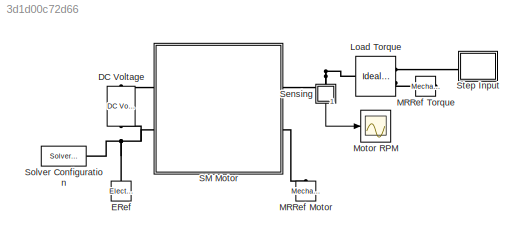
MODEL slx_3d1d00c72d66
KIND model
CONFIG AbsTol = auto
CONFIG EnableMultiTasking = off
CONFIG FixedStep = auto
CONFIG MaxStep = auto
CONFIG MinStep = auto
CONFIG RelTol = 1e-3
CONFIG SampleTimeConstraint = Unconstrained
CONFIG Solver = VariableStepAuto
CONFIG SolverName = VariableStepAuto
CONFIG StartTime = 0.0
CONFIG StopTime = 10
BLOCK [Reference] DC Voltage  REF=fl_lib/Electrical/Electrical Sources/DC Voltage Source
  Ports = [0, 0, 0, 0, 0, 1, 1]
  SourceBlock = fl_lib/Electrical/Electrical Sources/DC Voltage Source
  SourceProductBaseCode = SS
  SourceProductName = Simscape
  SourceType = DC Voltage Source
BLOCK [Reference] ERef  REF=fl_lib/Electrical/Electrical Elements/Electrical Reference
  Ports = [0, 0, 0, 0, 0, 1]
  SourceBlock = fl_lib/Electrical/Electrical Elements/Electrical Reference
  SourceProductBaseCode = SS
  SourceProductName = Simscape
  SourceType = Electrical Reference
BLOCK [Reference] Load Torque  REF=fl_lib/Mechanical/Mechanical Sources/Ideal Torque Source
  Ports = [0, 0, 0, 0, 0, 1, 2]
  SourceBlock = fl_lib/Mechanical/Mechanical Sources/Ideal Torque Source
  SourceProductBaseCode = SS
  SourceProductName = Simscape
  SourceType = Ideal Torque Source
BLOCK [Reference] MRRef Motor  REF=fl_lib/Mechanical/Rotational Elements/Mechanical
Rotational Reference
  Ports = [0, 0, 0, 0, 0, 1]
  SourceBlock = fl_lib/Mechanical/Rotational Elements/Mechanical\nRotational Reference
  SourceProductBaseCode = SS
  SourceProductName = Simscape
  SourceType = Mechanical\nRotational Reference
BLOCK [Reference] MRRef Torque  REF=fl_lib/Mechanical/Rotational Elements/Mechanical
Rotational Reference
  Ports = [0, 0, 0, 0, 0, 1]
  SourceBlock = fl_lib/Mechanical/Rotational Elements/Mechanical\nRotational Reference
  SourceProductBaseCode = SS
  SourceProductName = Simscape
  SourceType = Mechanical\nRotational Reference
BLOCK [Scope] Motor RPM
  Floating = off
  NumInputPorts = 1
  Ports = [1]
  ScopeSpecificationString = Simulink.scopes.TimeScopeBlockCfg('CurrentConfiguration', extmgr.ConfigurationSet(extmgr.Configuration('Core','General UI',true),extmgr.Configuration('Core','Source UI',true),extmgr.Configuration('Sources','WiredSimulink',true,'DataLoggingSaveFormat','StructureWithTime','DataLoggingLimitDataPoints',true,'DataLoggingDecimation','1'),extmgr.Configuration('Visuals','Time Domain',true,'SerializedDispl...<+1692ch>
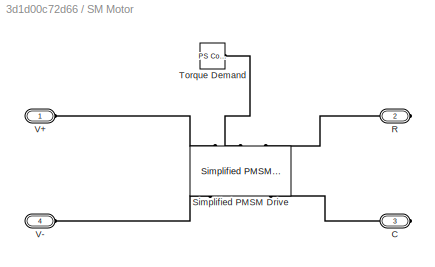
BLOCK [SubSystem] SM Motor
  Ports = [0, 0, 0, 0, 0, 2, 2]
  RequestExecContextInheritance = off
  Tag = PublishSubsystem
BLOCK [PMIOPort] SM Motor/C
  Port = 3
  Side = Right
BLOCK [PMIOPort] SM Motor/R
  Port = 2
  Side = Right
BLOCK [Reference] SM Motor/Simplified PMSM Drive  REF=ee_lib/Electromechanical/Permanent Magnet/Simplified PMSM
Drive
  Ports = [0, 0, 0, 0, 0, 3, 4]
  SourceBlock = ee_lib/Electromechanical/Permanent Magnet/Simplified PMSM\nDrive
  SourceProductBaseCode = PS
  SourceProductName = Simscape Electrical
  SourceType = Simplified PMSM\nDrive
BLOCK [Reference] SM Motor/Torque Demand  REF=fl_lib/Physical Signals/Sources/PS Constant
  Ports = [0, 0, 0, 0, 0, 0, 1]
  SourceBlock = fl_lib/Physical Signals/Sources/PS Constant
  SourceProductBaseCode = SS
  SourceProductName = Simscape
  SourceType = PS Constant
BLOCK [PMIOPort] SM Motor/V+
  Side = Left
BLOCK [PMIOPort] SM Motor/V-
  Port = 4
  Side = Left
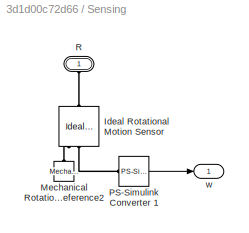
BLOCK [SubSystem] Sensing
  Ports = [0, 1, 0, 0, 0, 1]
  RequestExecContextInheritance = off
BLOCK [Reference] Sensing/Ideal Rotational Motion Sensor  REF=fl_lib/Mechanical/Mechanical Sensors/Ideal Rotational
Motion Sensor
  Ports = [0, 0, 0, 0, 0, 1, 3]
  SourceBlock = fl_lib/Mechanical/Mechanical Sensors/Ideal Rotational\nMotion Sensor
  SourceProductBaseCode = SS
  SourceProductName = Simscape
  SourceType = Ideal Rotational\nMotion Sensor
BLOCK [Reference] Sensing/Mechanical Rotational Reference2  REF=fl_lib/Mechanical/Rotational Elements/Mechanical
Rotational Reference
  Ports = [0, 0, 0, 0, 0, 1]
  SourceBlock = fl_lib/Mechanical/Rotational Elements/Mechanical\nRotational Reference
  SourceProductBaseCode = SS
  SourceProductName = Simscape
  SourceType = Mechanical\nRotational Reference
BLOCK [Reference] Sensing/PS-Simulink Converter 1  REF=nesl_utility/PS-Simulink
Converter
  Ports = [0, 1, 0, 0, 0, 1]
  SourceBlock = nesl_utility/PS-Simulink\nConverter
  SourceProductBaseCode = SS
  SourceProductName = Simscape
  SourceType = PS-Simulink\nConverter
BLOCK [PMIOPort] Sensing/R
  Side = Left
BLOCK [Outport] Sensing/w
  IconDisplay = Port number
  VectorParamsAs1DForOutWhenUnconnected = off
BLOCK [Reference] Solver Configuration  REF=nesl_utility/Solver
Configuration
  Ports = [0, 0, 0, 0, 0, 0, 1]
  SourceBlock = nesl_utility/Solver\nConfiguration
  SourceProductBaseCode = SS
  SourceProductName = Simscape
  SourceType = Solver\nConfiguration
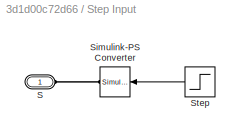
BLOCK [SubSystem] Step Input
  Ports = [0, 0, 0, 0, 0, 1]
  RequestExecContextInheritance = off
BLOCK [PMIOPort] Step Input/S
  Side = Left
BLOCK [Reference] Step Input/Simulink-PS Converter  REF=nesl_utility/Simulink-PS
Converter
  Ports = [1, 0, 0, 0, 0, 0, 1]
  SourceBlock = nesl_utility/Simulink-PS\nConverter
  SourceProductBaseCode = SS
  SourceProductName = Simscape
  SourceType = Simulink-PS\nConverter
BLOCK [Step] Step Input/Step
  SampleTime = 0
  Time = 5
LINE Sensing/PS-Simulink Converter 1:1 -> Sensing/w:1
LINE Sensing:1 -> Motor RPM:1
LINE Step Input/Step:1 -> Step Input/Simulink-PS Converter:1
PLINE DC Voltage:LConn1 -- SM Motor:LConn1
PNET net1: DC Voltage:RConn1 -- ERef:LConn1 -- SM Motor:LConn2 -- Solver Configuration:RConn1
PNET net2: Load Torque:LConn1 -- SM Motor:RConn1 -- Sensing:LConn1
PLINE Load Torque:RConn1 -- Step Input:LConn1
PLINE Load Torque:RConn2 -- MRRef Torque:LConn1
PLINE MRRef Motor:LConn1 -- SM Motor:RConn2
PLINE SM Motor/C:RConn1 -- SM Motor/Simplified PMSM Drive:RConn4
PLINE SM Motor/R:RConn1 -- SM Motor/Simplified PMSM Drive:LConn3
PLINE SM Motor/Simplified PMSM Drive:LConn1 -- SM Motor/V+:RConn1
PLINE SM Motor/Simplified PMSM Drive:LConn2 -- SM Motor/Torque Demand:RConn1
PLINE SM Motor/Simplified PMSM Drive:RConn1 -- SM Motor/V-:RConn1
PLINE Sensing/Ideal Rotational Motion Sensor:LConn1 -- Sensing/R:RConn1
PLINE Sensing/Ideal Rotational Motion Sensor:RConn1 -- Sensing/Mechanical Rotational Reference2:LConn1
PLINE Sensing/Ideal Rotational Motion Sensor:RConn2 -- Sensing/PS-Simulink Converter 1:LConn1
PLINE Step Input/S:RConn1 -- Step Input/Simulink-PS Converter:RConn1
note: PNET lines group multi-terminal physical nets as a canonical sorted terminal list (undirected conserving connections); 2-terminal nets keep the pairwise PLINE form
